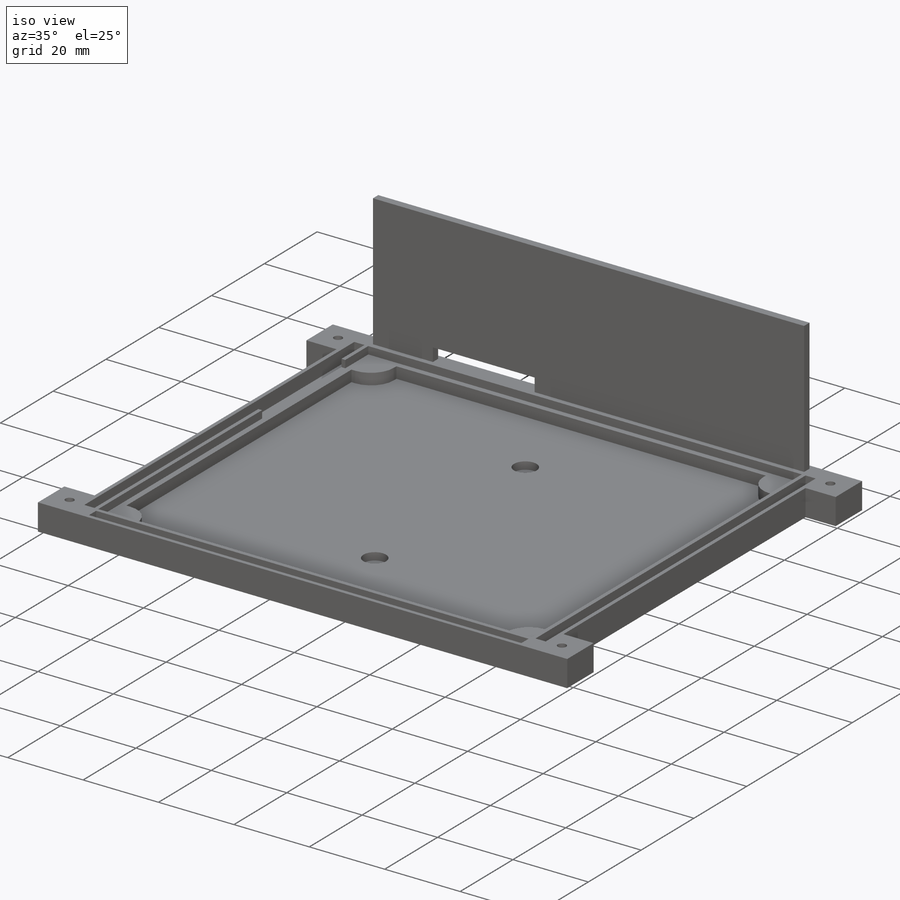
[diagram: iso view]
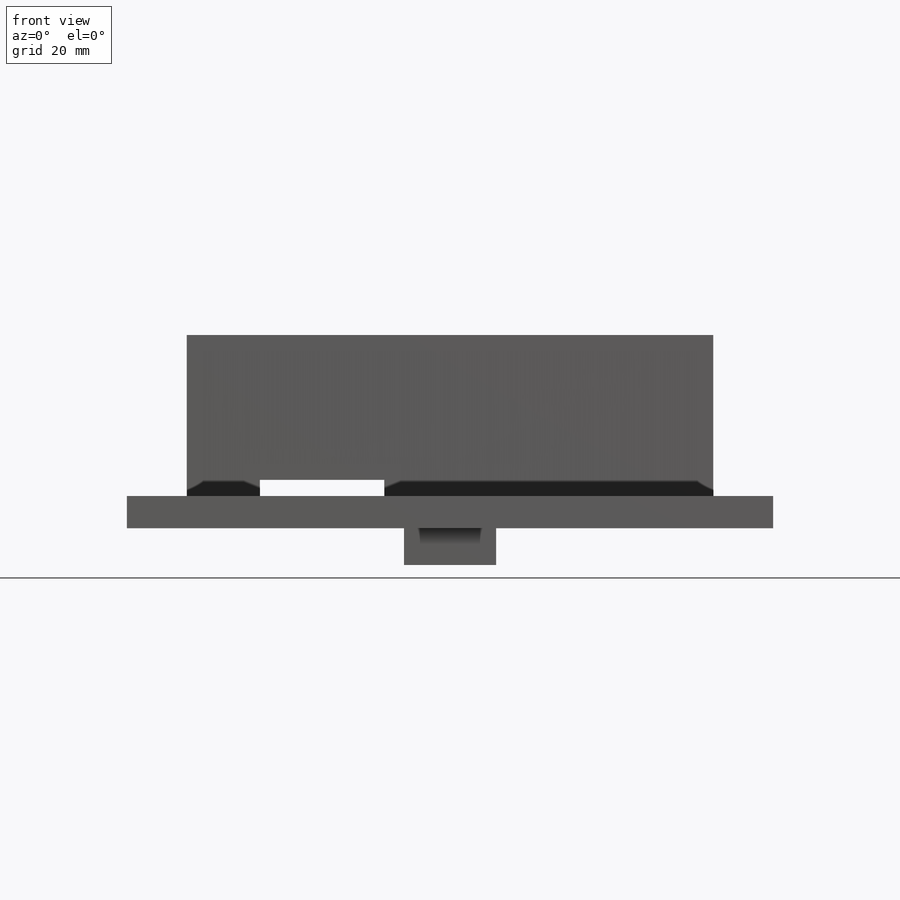
[diagram: front view]
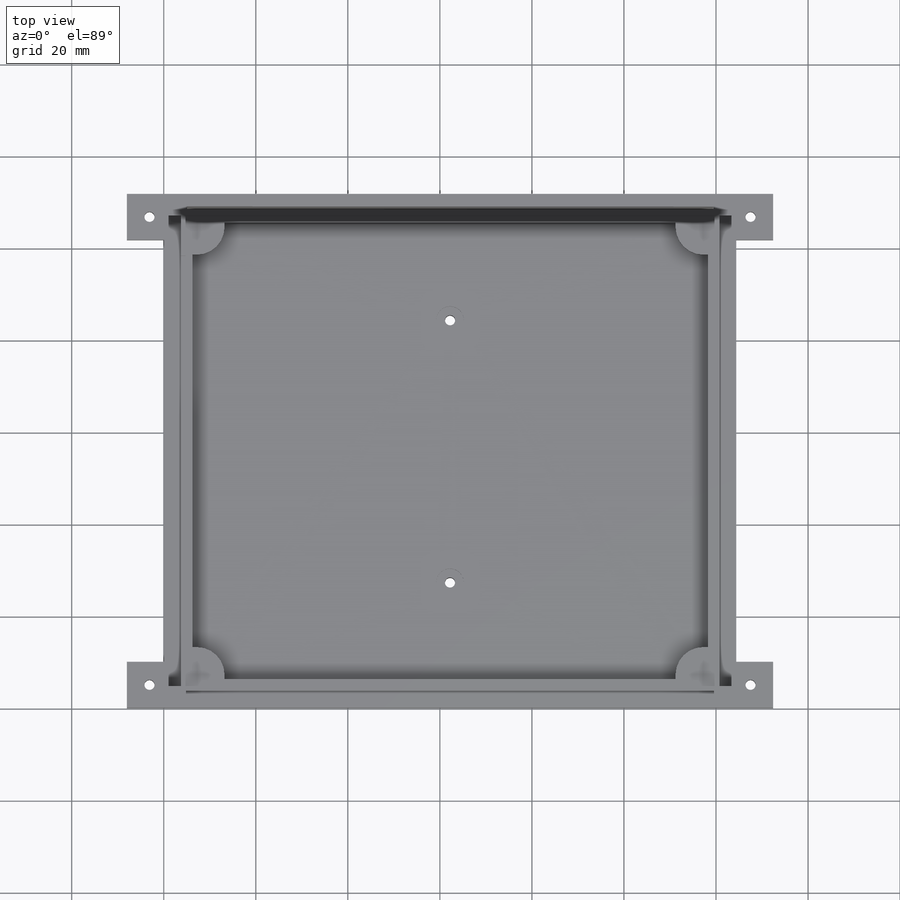
[diagram: top view]
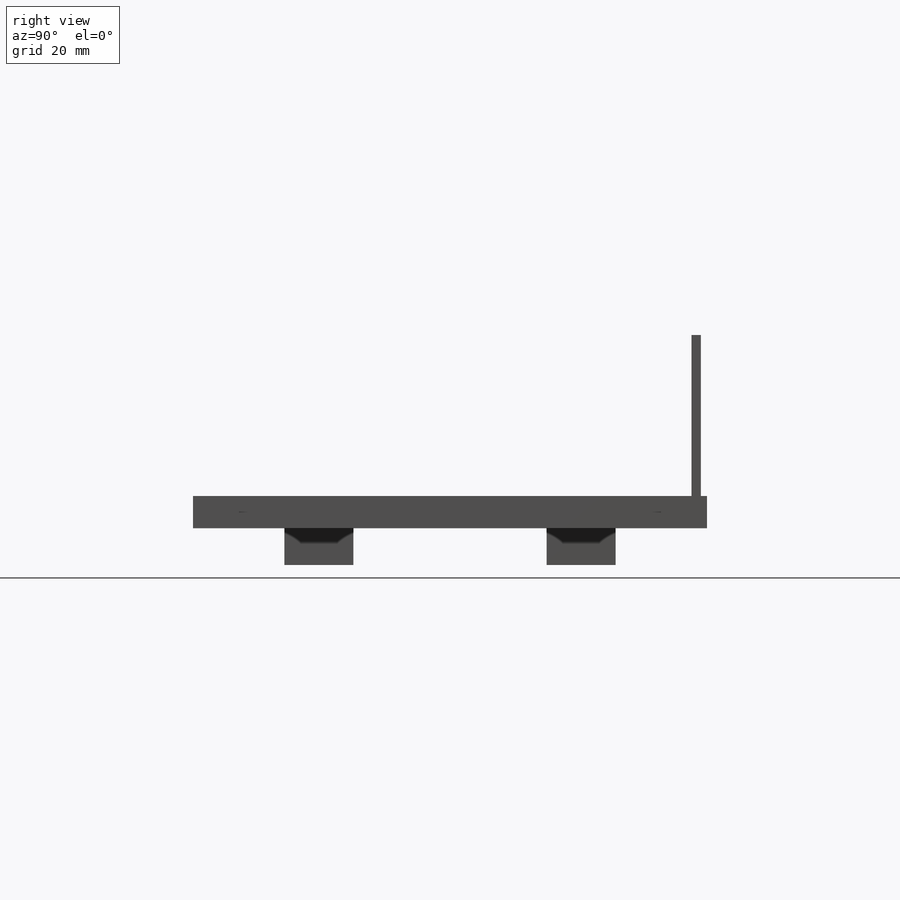
[diagram: right view]
SOLIDWORKS PART (.sldprt)
format: sldprt  version: not decoded by parser v0  size: 949,760 bytes
history: native  units: mm
features: sketch x32, cut_extrude x16, extrude x15, fillet x2, material x1 (+12 scaffold rows collapsed)
feature tree (78):
  scaffold x12  (default folders/planes/origin — collapsed)
  material  "Material <not specified>"
  sketch  "Sketch1"  dims[D1=124.4mm D2=111.7mm]
  extrude  "Boss-Extrude1"  Depth=15.65mm
  fillet  "Fillet1"  Radius=2mm
  sketch  "Sketch4"  dims[c1.D2=101.8mm c1.D3=114.5mm c1.D1=3.7mm c1.D4=2.5mm c1.D5=2.5mm c1.D6=5.0mm c2.D1=4.7mm c2.D4=4.7mm c2.D5=4.7mm c2.D6=4.7mm c2.D7=4.7mm c2.D8=4.45mm c2.D2=4.7mm c2.D3=4.7mm c3.D8=4.7mm c3.D1=5.0mm]
  cut_extrude  "Cut-Extrude1"  Depth=2mm
  sketch  "Sketch5"  dims[D2=113.35mm D1=1.5mm]
  cut_extrude  "Cut-Extrude2"  Depth=3mm
  sketch  "Sketch10"  dims[D1=7.0mm D2=7.0mm D3=7.0mm D4=7.0mm D5=7.0mm D6=7.0mm D7=7.0mm]
  extrude  "Boss-Extrude2"  Depth=3mm
  sketch  "Sketch27"  dims[c1.D1=115.3mm c1.D2=2.0mm c2.D1=3.7mm c2.D3=2.5mm c3.D1=5.0mm c3.D3=5.0mm c3.D4=1.35mm c3.D5=1.35mm c3.D6=1.35mm c3.D7=1.0mm c3.D8=2.0mm c3.D2=1.35mm]
  extrude  "Boss-Extrude5"  Depth=35mm
  sketch  "Sketch29"  dims[c1.D1=27.0mm c1.D2=3.5mm c1.D3=15.9mm c1.D4=13.1mm c1.D5=0.55mm c2.D4=0.0mm c2.D1=27.0mm c2.D2=15.9mm c2.D3=3.5mm]
  fillet  "Fillet3"  Radius=6mm
  sketch  "Sketch32"  dims[D1=2.7mm D2=1.0mm D3=4.85mm D4=4.85mm D5=1.0mm D6=1.0mm D7=4.7mm D8=4.7mm D9=1.0mm D10=1.0mm D11=4.7mm D12=4.7mm]
  cut_extrude  "Cut-Extrude7"  Depth=3.5mm
  cut_extrude  "Cut-Extrude8"  [1 undecoded]
  sketch  "Sketch34"  dims[D1=8.7mm D2=31.5mm]
  cut_extrude  "Cut-Extrude9"  Depth=2mm
  sketch  "Sketch39"
  cut_extrude  "Cut-Extrude14"  Depth=8.65mm
  sketch  "Sketch40"
  extrude  "Boss-Extrude8"  Depth=7mm
  sketch  "Sketch42"
  extrude  "Boss-Extrude9"  Depth=7mm
  sketch  "Sketch43"
  extrude  "Boss-Extrude10"  Depth=7mm
  sketch  "Sketch44"
  extrude  "Boss-Extrude11"  Depth=7mm
  sketch  "Sketch45"  dims[D4=~1.236529mm D1=5.0mm D2=5.0mm D3=5.0mm]
  cut_extrude  "Cut-Extrude15"  [1 undecoded]
  sketch  "Sketch46"
  extrude  "Boss-Extrude12"  Depth=7mm
  sketch  "Sketch47"
  extrude  "Boss-Extrude13"  Depth=7mm
  sketch  "Sketch48"  dims[D1=10.0mm D2=10.0mm]
  extrude  "Boss-Extrude14"  Depth=7mm
  sketch  "Sketch49"  dims[D1=~1.413057mm]
  cut_extrude  "Cut-Extrude18"  Depth=7mm
  sketch  "Sketch50"  dims[D1=10.0mm D2=8.0mm]
  extrude  "Boss-Extrude17"  Depth=7mm
  sketch  "Sketch51"
  extrude  "Boss-Extrude18"  Depth=7mm
  sketch  "Sketch52"  dims[D1=2.0mm]
  cut_extrude  "Cut-Extrude19"  Depth=7mm
  sketch  "Sketch53"
  cut_extrude  "Cut-Extrude20"  Depth=7mm
  sketch  "Sketch54"  dims[D1=8.0mm D2=10.0mm]
  extrude  "Boss-Extrude19"  Depth=7mm
  sketch  "Sketch55"  dims[D1=8.0mm D2=10.0mm]
  extrude  "Boss-Extrude20"  Depth=7mm
  sketch  "Sketch56"  dims[D2=2.2mm D1=3.1mm]
  cut_extrude  "Cut-Extrude21"  Depth=7mm
  sketch  "Sketch57"  dims[D2=~1.102282mm D1=3.1mm]
  cut_extrude  "Cut-Extrude22"  Depth=7mm
  sketch  "Sketch58"  dims[D2=~1.197461mm D1=3.1mm]
  cut_extrude  "Cut-Extrude23"  Depth=7mm
  sketch  "Sketch59"  dims[D2=~0.908949mm D1=3.1mm]
  cut_extrude  "Cut-Extrude24"  Depth=7mm
  sketch  "Sketch60"
  sketch  "Sketch61"  dims[c1.D1=28.5mm c1.D2=28.5mm c1.D3=~8.335851mm c1.D4=20.0mm c2.D1=28.5mm c2.D2=28.5mm c2.D3=10.0mm c2.D4=10.0mm c3.D1=55.85mm c3.D2=55.85mm c3.D3=62.2mm c4.D1=28.5mm c4.D2=28.5mm c4.D3=10.0mm c4.D4=10.0mm c4.D5=7.5mm c4.D6=7.5mm c4.D7=7.5mm c4.D8=7.5mm c4.D9=10.0mm c4.D10=10.0mm]
  extrude  "Boss-Extrude22"  Depth=8mm
  sketch  "Sketch64"  dims[D1=~0.772714mm]
  cut_extrude  "Cut-Extrude27"  [1 undecoded]
  sketch  "Sketch65"  dims[D1=~3.327085mm]
  cut_extrude  "Cut-Extrude28"  Depth=2mm
decode coverage: 52 of 65 modeling features carry decoded parameters
note: ~ marks probable driven/reference dimensions
note: 3 parameter values undecoded
summary: no parameter record found for 3 features
note: suppression state not decoded; provenance and decode notes live in map.json
